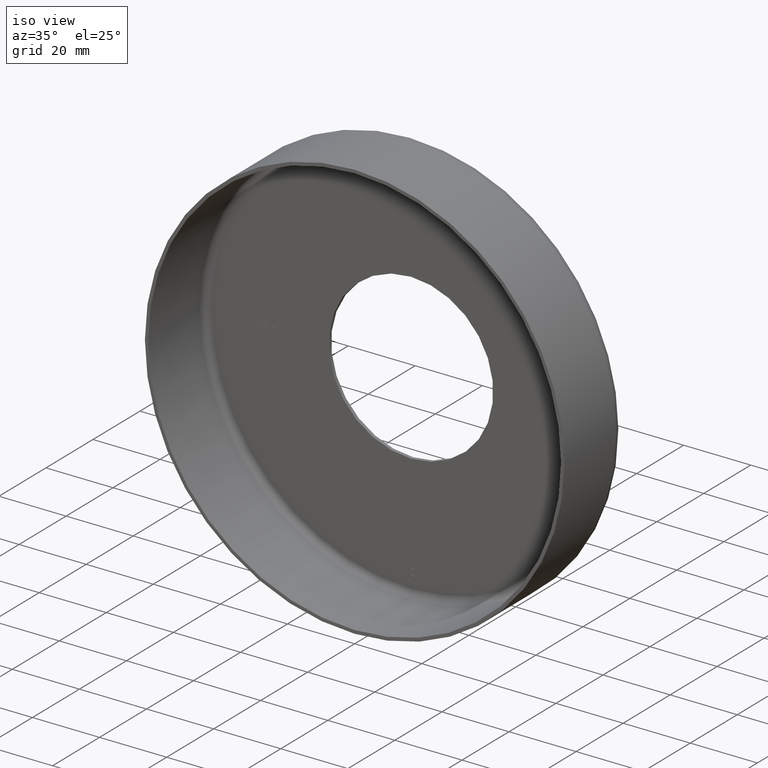
[diagram: clean part render]
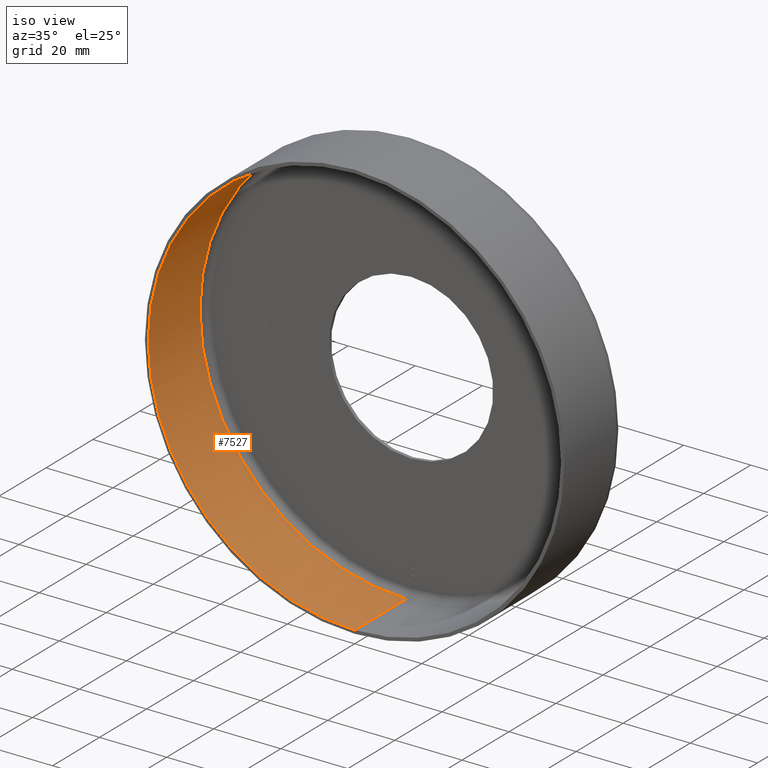
[diagram: same view with one face highlighted and labeled with its STEP entity id]
A machine part, iso view. The second image highlights one B-rep face of the part: STEP entity #7527.
In plain terms, the highlighted cylindrical surface (partial cylindrical patch) has radius 61.5 mm, axis along (-0, -1, -0).
Its self-contained STEP definition (entity closure, byte-faithful):
#1301 = VERTEX_POINT ( 'NONE', #6618 ) ;
#1816 = VERTEX_POINT ( 'NONE', #8120 ) ;
#2337 = EDGE_LOOP ( 'NONE', ( #13371, #4141, #13726, #8522 ) ) ;
#2539 = CARTESIAN_POINT ( 'NONE',  ( 7.531577814756222656E-15, 22.00000000000000355, 61.50000000000000000 ) ) ;
#2573 = CIRCLE ( 'NONE', #14586, 61.50000000000000000 ) ;
#2877 = CYLINDRICAL_SURFACE ( 'NONE', #14321, 61.50000000000000000 ) ;
#3160 = VECTOR ( 'NONE', #6546, 1000.000000000000000 ) ;
#3180 = DIRECTION ( 'NONE',  ( 0.000000000000000000, 0.000000000000000000, -1.000000000000000000 ) ) ;
#3853 = AXIS2_PLACEMENT_3D ( 'NONE', #11205, #8673, #6399 ) ;
#4141 = ORIENTED_EDGE ( 'NONE', *, *, #5055, .T. ) ;
#4272 = VECTOR ( 'NONE', #15005, 1000.000000000000000 ) ;
#5014 = FACE_OUTER_BOUND ( 'NONE', #2337, .T. ) ;
#5027 = CARTESIAN_POINT ( 'NONE',  ( 0.000000000000000000, 22.00000000000000355, 0.000000000000000000 ) ) ;
#5055 = EDGE_CURVE ( 'NONE', #14434, #1301, #14130, .T. ) ;
#5745 = DIRECTION ( 'NONE',  ( -0.000000000000000000, -1.000000000000000000, -0.000000000000000000 ) ) ;
#6247 = CARTESIAN_POINT ( 'NONE',  ( 7.531577814756222656E-15, 0.000000000000000000, 61.50000000000000000 ) ) ;
#6399 = DIRECTION ( 'NONE',  ( 0.000000000000000000, 0.000000000000000000, -1.000000000000000000 ) ) ;
#6546 = DIRECTION ( 'NONE',  ( -0.000000000000000000, -1.000000000000000000, -0.000000000000000000 ) ) ;
#6618 = CARTESIAN_POINT ( 'NONE',  ( 7.531577814756222656E-15, -1.224646799147353207E-16, 61.50000000000000000 ) ) ;
#7094 = CIRCLE ( 'NONE', #3853, 61.50000000000000000 ) ;
#7527 = ADVANCED_FACE ( 'NONE', ( #5014 ), #2877, .F. ) ;
#8120 = CARTESIAN_POINT ( 'NONE',  ( 0.000000000000000000, 22.00000000000000355, -61.50000000000000000 ) ) ;
#8210 = VERTEX_POINT ( 'NONE', #13911 ) ;
#8522 = ORIENTED_EDGE ( 'NONE', *, *, #15947, .F. ) ;
#8673 = DIRECTION ( 'NONE',  ( -0.000000000000000000, -1.000000000000000000, -0.000000000000000000 ) ) ;
#10534 = LINE ( 'NONE', #14041, #3160 ) ;
#11205 = CARTESIAN_POINT ( 'NONE',  ( 0.000000000000000000, -1.224646799147353207E-16, 0.000000000000000000 ) ) ;
#11286 = DIRECTION ( 'NONE',  ( -0.000000000000000000, -1.000000000000000000, -0.000000000000000000 ) ) ;
#11916 = EDGE_CURVE ( 'NONE', #1301, #8210, #7094, .T. ) ;
#13371 = ORIENTED_EDGE ( 'NONE', *, *, #15804, .F. ) ;
#13656 = DIRECTION ( 'NONE',  ( 0.000000000000000000, 0.000000000000000000, -1.000000000000000000 ) ) ;
#13726 = ORIENTED_EDGE ( 'NONE', *, *, #11916, .T. ) ;
#13911 = CARTESIAN_POINT ( 'NONE',  ( 0.000000000000000000, -1.224646799147353207E-16, -61.50000000000000000 ) ) ;
#14041 = CARTESIAN_POINT ( 'NONE',  ( 0.000000000000000000, 0.000000000000000000, -61.50000000000000000 ) ) ;
#14130 = LINE ( 'NONE', #6247, #4272 ) ;
#14321 = AXIS2_PLACEMENT_3D ( 'NONE', #15691, #5745, #3180 ) ;
#14434 = VERTEX_POINT ( 'NONE', #2539 ) ;
#14586 = AXIS2_PLACEMENT_3D ( 'NONE', #5027, #11286, #13656 ) ;
#15005 = DIRECTION ( 'NONE',  ( -0.000000000000000000, -1.000000000000000000, -0.000000000000000000 ) ) ;
#15691 = CARTESIAN_POINT ( 'NONE',  ( 0.000000000000000000, 0.000000000000000000, 0.000000000000000000 ) ) ;
#15804 = EDGE_CURVE ( 'NONE', #14434, #1816, #2573, .T. ) ;
#15947 = EDGE_CURVE ( 'NONE', #1816, #8210, #10534, .T. ) ;